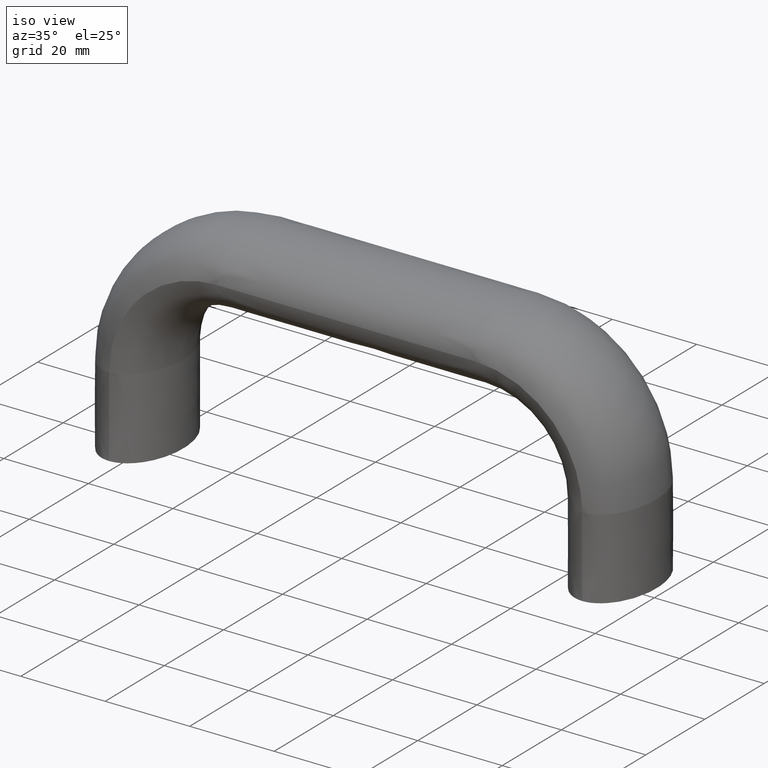
[diagram: clean part render]
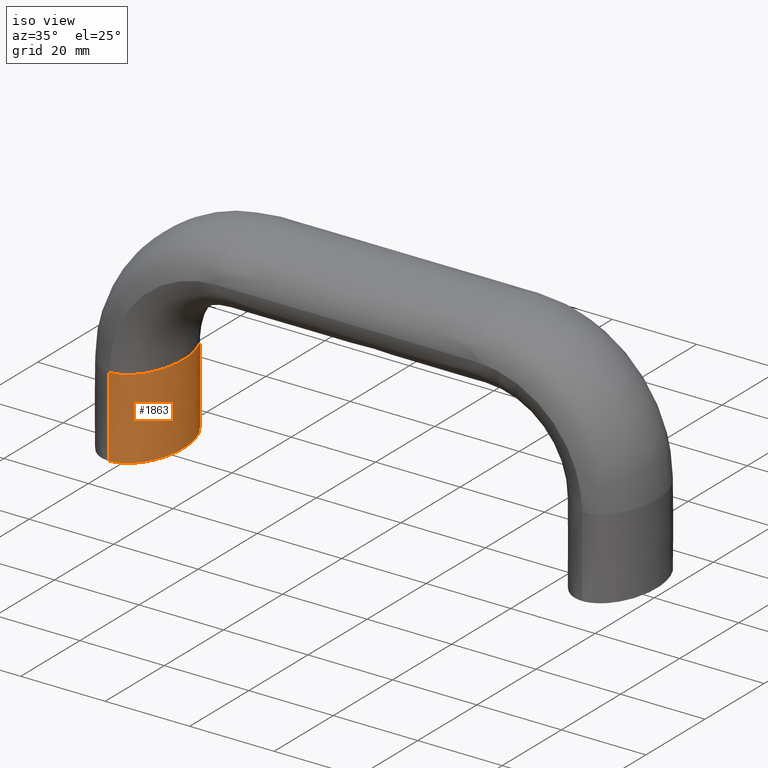
[diagram: same view with one face highlighted and labeled with its STEP entity id]
A machine part, iso view. The second image highlights one B-rep face of the part: STEP entity #1863.
In plain terms, the highlighted face is a freeform B-spline surface patch.
Its self-contained STEP definition (entity closure, byte-faithful):
#1450=CARTESIAN_POINT('',(3.619064500983346,11.762637318019101,19.000008000000001));
#1451=VERTEX_POINT('',#1450);
#1465=CARTESIAN_POINT('',(-1.951564E-015,13.0,19.000008000000001));
#1466=VERTEX_POINT('',#1465);
#1467=CARTESIAN_POINT('',(3.619064500983346,11.762637318019101,19.000008000000001));
#1468=CARTESIAN_POINT('',(3.498286135098995,11.849650038056430,19.000008000000001));
#1469=CARTESIAN_POINT('',(3.376160099865832,11.932290729989900,19.000008000000001));
#1470=CARTESIAN_POINT('',(2.224857017053885,12.661644796688099,19.000008000000001));
#1471=CARTESIAN_POINT('',(1.112647398146382,13.0,19.000008000000001));
#1472=CARTESIAN_POINT('',(-1.951564E-015,13.0,19.000008000000001));
#1473=B_SPLINE_CURVE_WITH_KNOTS('',3,(#1467,#1468,#1469,#1470,#1471,#1472),.UNSPECIFIED.,.F.,.U.,(4,2,4),(0.430000202721214,0.437500000000000,0.500000000000000),.UNSPECIFIED.);
#1474=EDGE_CURVE('',#1451,#1466,#1473,.T.);
#1476=CARTESIAN_POINT('',(-3.619074295161406,11.762630261970060,19.000008000000001));
#1477=VERTEX_POINT('',#1476);
#1478=CARTESIAN_POINT('',(-1.951564E-015,13.0,19.000008000000001));
#1479=CARTESIAN_POINT('',(-1.112647398146386,13.0,19.000008000000001));
#1480=CARTESIAN_POINT('',(-2.224857017053880,12.661644796688099,19.000008000000001));
#1481=CARTESIAN_POINT('',(-3.376163434188957,11.932288617685890,19.000008000000001));
#1482=CARTESIAN_POINT('',(-3.498292737523893,11.849645570299540,19.000008000000001));
#1483=CARTESIAN_POINT('',(-3.619074295161406,11.762630261970060,19.000008000000001));
#1484=B_SPLINE_CURVE_WITH_KNOTS('',3,(#1478,#1479,#1480,#1481,#1482,#1483),.UNSPECIFIED.,.F.,.U.,(4,2,4),(0.500000000000000,0.562500000000000,0.570000000007282),.UNSPECIFIED.);
#1485=EDGE_CURVE('',#1466,#1477,#1484,.T.);
#1487=CARTESIAN_POINT('',(8.991289E-016,-13.0,19.000008000000001));
#1488=VERTEX_POINT('',#1487);
#1645=CARTESIAN_POINT('',(9.757820E-016,-13.0,19.000008000000001));
#1646=CARTESIAN_POINT('',(1.112647398146386,-13.0,19.000008000000001));
#1647=CARTESIAN_POINT('',(2.224857017053890,-12.661644796688099,19.000008000000001));
#1648=CARTESIAN_POINT('',(4.280761333152650,-11.359223048605340,19.000008000000001));
#1649=CARTESIAN_POINT('',(5.223647119786780,-10.395668951176340,19.000008000000001));
#1650=CARTESIAN_POINT('',(7.583928680683410,-6.785826563922671,19.000008000000001));
#1651=CARTESIAN_POINT('',(8.500000000000000,-3.403392041388941,19.000008000000001));
#1652=CARTESIAN_POINT('',(8.500000000000000,3.403392041388945,19.000008000000001));
#1653=CARTESIAN_POINT('',(7.583928680683410,6.785826563922680,19.000008000000001));
#1654=CARTESIAN_POINT('',(5.318055830333866,10.251279158574910,19.000008000000001));
#1655=CARTESIAN_POINT('',(4.504799723069137,11.124524438030560,19.000008000000001));
#1656=CARTESIAN_POINT('',(3.619064500983346,11.762637318019101,19.000008000000001));
#1657=B_SPLINE_CURVE_WITH_KNOTS('',3,(#1645,#1646,#1647,#1648,#1649,#1650,#1651,#1652,#1653,#1654,#1655,#1656),.UNSPECIFIED.,.F.,.U.,(4,2,2,2,2,4),(0.0,0.062500000000000,0.125000000000000,0.250000000000000,0.375000000000000,0.430000202721214),.UNSPECIFIED.);
#1658=EDGE_CURVE('',#1488,#1451,#1657,.T.);
#1714=CARTESIAN_POINT('',(-3.619217702197332,11.762830137876939,0.0));
#1715=VERTEX_POINT('',#1714);
#1716=CARTESIAN_POINT('',(-3.619217702197332,11.762830137876939,0.0));
#1717=CARTESIAN_POINT('',(-3.619169899852032,11.762763512574660,6.333335998808017));
#1718=CARTESIAN_POINT('',(-3.619188282751441,11.762696887272339,12.666672001587090));
#1719=CARTESIAN_POINT('',(-3.619074295161406,11.762630261970060,19.000008000000001));
#1720=B_SPLINE_CURVE_WITH_KNOTS('',3,(#1716,#1717,#1718,#1719),.UNSPECIFIED.,.F.,.U.,(4,4),(0.0,0.106079734862488),.UNSPECIFIED.);
#1721=EDGE_CURVE('',#1715,#1477,#1720,.T.);
#1723=CARTESIAN_POINT('',(8.777701E-016,-13.0,4.440892E-016));
#1724=VERTEX_POINT('',#1723);
#1743=CARTESIAN_POINT('',(8.881784E-016,-13.0,0.0));
#1744=CARTESIAN_POINT('',(8.881784E-016,-13.0,6.333335998951690));
#1745=CARTESIAN_POINT('',(-0.000062061963146,-13.0,12.666672001395780));
#1746=CARTESIAN_POINT('',(8.881784E-016,-13.0,19.000008000000001));
#1747=B_SPLINE_CURVE_WITH_KNOTS('',3,(#1743,#1744,#1745,#1746),.UNSPECIFIED.,.F.,.U.,(4,4),(0.0,0.106079734862488),.UNSPECIFIED.);
#1748=EDGE_CURVE('',#1724,#1488,#1747,.T.);
#1753=CARTESIAN_POINT('',(9.757820E-016,-13.0,0.0));
#1754=CARTESIAN_POINT('',(1.112647398146386,-13.0,0.0));
#1755=CARTESIAN_POINT('',(2.224857017053890,-12.661644796688099,0.0));
#1756=CARTESIAN_POINT('',(4.280761333152650,-11.359223048605340,0.0));
#1757=CARTESIAN_POINT('',(5.223647119786780,-10.395668951176340,0.0));
#1758=CARTESIAN_POINT('',(7.583928680683410,-6.785826563922671,0.0));
#1759=CARTESIAN_POINT('',(8.500000000000000,-3.403392041388941,0.0));
#1760=CARTESIAN_POINT('',(8.500000000000000,3.403392041388945,0.0));
#1761=CARTESIAN_POINT('',(7.583928680683410,6.785826563922680,0.0));
#1762=CARTESIAN_POINT('',(5.223647119786770,10.395668951176340,0.0));
#1763=CARTESIAN_POINT('',(4.280761333152644,11.359223048605340,0.0));
#1764=CARTESIAN_POINT('',(2.224857017053885,12.661644796688099,0.0));
#1765=CARTESIAN_POINT('',(1.112647398146382,13.0,0.0));
#1766=CARTESIAN_POINT('',(-1.112647398146386,13.0,0.0));
#1767=CARTESIAN_POINT('',(-2.224857017053880,12.661644796688099,0.0));
#1768=CARTESIAN_POINT('',(-3.376163434069187,11.932288617761770,0.0));
#1769=CARTESIAN_POINT('',(-3.498292737286733,11.849645570460019,0.0));
#1770=CARTESIAN_POINT('',(-3.619074294985477,11.762630262096810,0.0));
#1771=CARTESIAN_POINT('',(9.757820E-016,-13.0,6.333335998951690));
#1772=CARTESIAN_POINT('',(1.112647398146386,-13.0,6.333335998997460));
#1773=CARTESIAN_POINT('',(2.224857017053890,-12.661644796688099,6.333335999044680));
#1774=CARTESIAN_POINT('',(4.280761333152650,-11.359223048605340,6.333335999134580));
#1775=CARTESIAN_POINT('',(5.223647119786780,-10.395668951176340,6.333335999176900));
#1776=CARTESIAN_POINT('',(7.583928680683410,-6.785826563922671,6.333335999285610));
#1777=CARTESIAN_POINT('',(8.500000000000000,-3.403392041388941,6.333335999328771));
#1778=CARTESIAN_POINT('',(8.500000000000000,3.403392041388945,6.333335999328771));
#1779=CARTESIAN_POINT('',(7.583928680683410,6.785826563922680,6.333335999285610));
#1780=CARTESIAN_POINT('',(5.223647119786770,10.395668951176340,6.333335999176900));
#1781=CARTESIAN_POINT('',(4.280761333152644,11.359223048605340,6.333335999134580));
#1782=CARTESIAN_POINT('',(2.224857017053885,12.661644796688099,6.333335999044680));
#1783=CARTESIAN_POINT('',(1.112647398146382,13.0,6.333335998997460));
#1784=CARTESIAN_POINT('',(-1.112647398146386,13.0,6.333335998905921));
#1785=CARTESIAN_POINT('',(-2.224857017053880,12.661644796688099,6.333335998861680));
#1786=CARTESIAN_POINT('',(-3.376163434069187,11.932288617761770,6.333335998817328));
#1787=CARTESIAN_POINT('',(-3.498292737286733,11.849645570460019,6.333335998812639));
#1788=CARTESIAN_POINT('',(-3.619074294985477,11.762630262096810,6.333335998808017));
#1789=CARTESIAN_POINT('',(-0.000062061963146,-13.0,12.666672001395780));
#1790=CARTESIAN_POINT('',(1.112586691455134,-13.0,12.666672001334840));
#1791=CARTESIAN_POINT('',(2.224797757801380,-12.661644796688099,12.666672001271980));
#1792=CARTESIAN_POINT('',(4.280704930903525,-11.359223048605340,12.666672001152280));
#1793=CARTESIAN_POINT('',(5.223592113664660,-10.395668951176340,12.666672001095920));
#1794=CARTESIAN_POINT('',(7.583877435313180,-6.785826563922671,12.666672000951200));
#1795=CARTESIAN_POINT('',(8.499950326773519,-3.403392041388941,12.666672000893721));
#1796=CARTESIAN_POINT('',(8.499950326773519,3.403392041388945,12.666672000893721));
#1797=CARTESIAN_POINT('',(7.583877435313171,6.785826563922680,12.666672000951200));
#1798=CARTESIAN_POINT('',(5.223592113664651,10.395668951176340,12.666672001095920));
#1799=CARTESIAN_POINT('',(4.280704930903521,11.359223048605340,12.666672001152280));
#1800=CARTESIAN_POINT('',(2.224797757801375,12.661644796688099,12.666672001271980));
#1801=CARTESIAN_POINT('',(1.112586691455130,13.0,12.666672001334840));
#1802=CARTESIAN_POINT('',(-1.112710815381430,13.0,12.666672001456719));
#1803=CARTESIAN_POINT('',(-2.224921704077945,12.661644796688099,12.666672001515620));
#1804=CARTESIAN_POINT('',(-3.376229360188069,11.932288617761770,12.666672001574691));
#1805=CARTESIAN_POINT('',(-3.498358794068034,11.849645570460019,12.666672001580940));
#1806=CARTESIAN_POINT('',(-3.619140480230216,11.762630262096810,12.666672001587090));
#1807=CARTESIAN_POINT('',(9.757820E-016,-13.0,19.000008000000001));
#1808=CARTESIAN_POINT('',(1.112647398146386,-13.0,19.000008000000001));
#1809=CARTESIAN_POINT('',(2.224857017053890,-12.661644796688099,19.000008000000001));
#1810=CARTESIAN_POINT('',(4.280761333152650,-11.359223048605340,19.000008000000001));
#1811=CARTESIAN_POINT('',(5.223647119786780,-10.395668951176340,19.000008000000001));
#1812=CARTESIAN_POINT('',(7.583928680683410,-6.785826563922671,19.000008000000001));
#1813=CARTESIAN_POINT('',(8.500000000000000,-3.403392041388941,19.000008000000001));
#1814=CARTESIAN_POINT('',(8.500000000000000,3.403392041388945,19.000008000000001));
#1815=CARTESIAN_POINT('',(7.583928680683410,6.785826563922680,19.000008000000001));
#1816=CARTESIAN_POINT('',(5.223647119786770,10.395668951176340,19.000008000000001));
#1817=CARTESIAN_POINT('',(4.280761333152644,11.359223048605340,19.000008000000001));
#1818=CARTESIAN_POINT('',(2.224857017053885,12.661644796688099,19.000008000000001));
#1819=CARTESIAN_POINT('',(1.112647398146382,13.0,19.000008000000001));
#1820=CARTESIAN_POINT('',(-1.112647398146386,13.0,19.000008000000001));
#1821=CARTESIAN_POINT('',(-2.224857017053880,12.661644796688099,19.000008000000001));
#1822=CARTESIAN_POINT('',(-3.376163434069187,11.932288617761770,19.000008000000001));
#1823=CARTESIAN_POINT('',(-3.498292737286733,11.849645570460019,19.000008000000001));
#1824=CARTESIAN_POINT('',(-3.619074294985477,11.762630262096810,19.000008000000001));
#1825=B_SPLINE_SURFACE_WITH_KNOTS('',3,3,((#1753,#1771,#1789,#1807),(#1754,#1772,#1790,#1808),(#1755,#1773,#1791,#1809),(#1756,#1774,#1792,#1810),(#1757,#1775,#1793,#1811),(#1758,#1776,#1794,#1812),(#1759,#1777,#1795,#1813),(#1760,#1778,#1796,#1814),(#1761,#1779,#1797,#1815),(#1762,#1780,#1798,#1816),(#1763,#1781,#1799,#1817),(#1764,#1782,#1800,#1818),(#1765,#1783,#1801,#1819),(#1766,#1784,#1802,#1820),(#1767,#1785,#1803,#1821),(#1768,#1786,#1804,#1822),(#1769,#1787,#1805,#1823),(#1770,#1788,#1806,#1824)),.UNSPECIFIED.,.F.,.F.,.U.,(4,2,2,2,2,2,2,2,4),(4,4),(0.0,5.001747877163425,10.003495754326851,20.006991508653702,30.010487262980551,35.012235140143972,40.013983017307403,45.015730894470821,45.615940639730432),(0.0,19.000008001702369),.UNSPECIFIED.);
#1826=ORIENTED_EDGE('',*,*,#1485,.F.);
#1827=ORIENTED_EDGE('',*,*,#1474,.F.);
#1828=ORIENTED_EDGE('',*,*,#1658,.F.);
#1829=ORIENTED_EDGE('',*,*,#1748,.F.);
#1830=CARTESIAN_POINT('',(-1.734723E-015,13.0,0.0));
#1831=VERTEX_POINT('',#1830);
#1832=CARTESIAN_POINT('',(9.215718E-016,-12.999999999999989,0.0));
#1833=CARTESIAN_POINT('',(1.691324023247385,-12.999801020701410,0.0));
#1834=CARTESIAN_POINT('',(3.252809175103269,-12.010433922646730,0.0));
#1835=CARTESIAN_POINT('',(4.815278939456166,-11.020442967741570,0.0));
#1836=CARTESIAN_POINT('',(6.010407640085663,-9.192388155425130,0.0));
#1837=CARTESIAN_POINT('',(7.206229809288498,-7.363272621730250,0.0));
#1838=CARTESIAN_POINT('',(7.852976026345942,-4.974884620746192,0.0));
#1839=CARTESIAN_POINT('',(8.500097515277195,-2.585110767294935,0.0));
#1840=CARTESIAN_POINT('',(8.500000000000005,1.508396E-014,0.0));
#1841=CARTESIAN_POINT('',(8.499902428139970,2.586610767339407,0.0));
#1842=CARTESIAN_POINT('',(7.852976026345933,4.974884620746177,0.0));
#1843=CARTESIAN_POINT('',(7.205674248140467,7.364544260335356,0.0));
#1844=CARTESIAN_POINT('',(6.010407640085652,9.192388155425123,0.0));
#1845=CARTESIAN_POINT('',(4.814447483450429,11.021292649489300,0.0));
#1846=CARTESIAN_POINT('',(3.252809175103262,12.010433922646740,0.0));
#1847=CARTESIAN_POINT('',(1.690814243818090,12.999801080674590,0.0));
#1848=CARTESIAN_POINT('',(-1.829591E-015,13.000000000000011,0.0));
#1849=B_SPLINE_CURVE_WITH_KNOTS('',2,(#1832,#1833,#1834,#1835,#1836,#1837,#1838,#1839,#1840,#1841,#1842,#1843,#1844,#1845,#1846,#1847,#1848),.UNSPECIFIED.,.F.,.U.,(3,2,2,2,2,2,2,2,3),(0.0,0.125000000000000,0.250000000000000,0.375000000000000,0.500000000000000,0.625000000000000,0.750000000000000,0.875000000000000,1.0),.UNSPECIFIED.);
#1850=EDGE_CURVE('',#1724,#1831,#1849,.T.);
#1851=ORIENTED_EDGE('',*,*,#1850,.T.);
#1852=CARTESIAN_POINT('',(-1.734723E-015,13.0,0.0));
#1853=CARTESIAN_POINT('',(-1.691264015607178,12.999717384176090,0.0));
#1854=CARTESIAN_POINT('',(-3.252681772387731,12.010256353269821,0.0));
#1855=CARTESIAN_POINT('',(-3.438549035721939,11.892473387633769,0.0));
#1856=CARTESIAN_POINT('',(-3.619217702197332,11.762830137876939,0.0));
#1857=B_SPLINE_CURVE_WITH_KNOTS('',2,(#1852,#1853,#1854,#1855,#1856),.UNSPECIFIED.,.F.,.U.,(3,2,3),(0.0,0.125000000000000,0.139870310622616),.UNSPECIFIED.);
#1858=EDGE_CURVE('',#1831,#1715,#1857,.T.);
#1859=ORIENTED_EDGE('',*,*,#1858,.T.);
#1860=ORIENTED_EDGE('',*,*,#1721,.T.);
#1861=EDGE_LOOP('',(#1826,#1827,#1828,#1829,#1851,#1859,#1860));
#1862=FACE_OUTER_BOUND('',#1861,.T.);
#1863=ADVANCED_FACE('',(#1862),#1825,.T.);